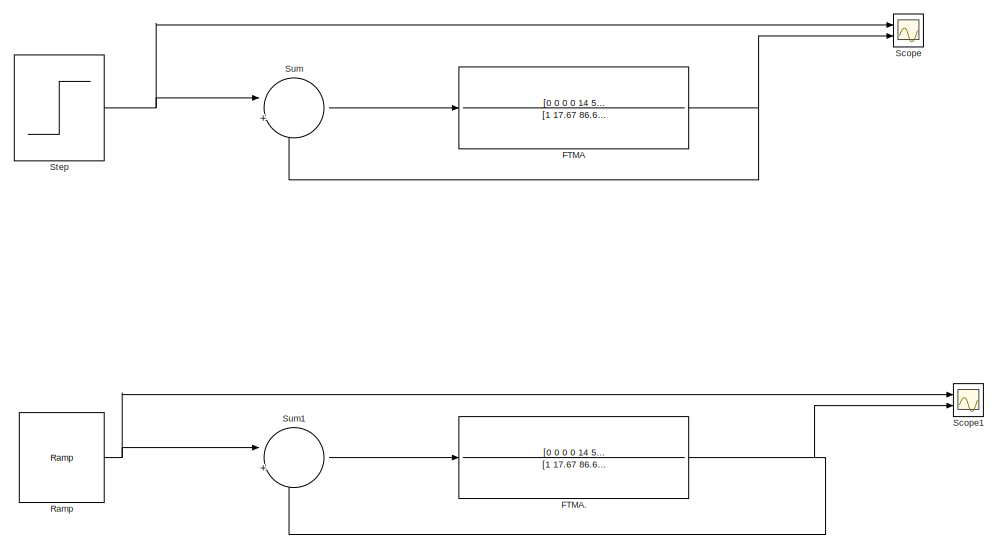
[diagram: root canvas - part 1/3, left side, full height]
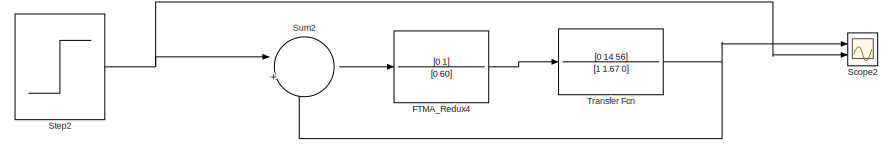
[diagram: root canvas - part 2/3, top right region]
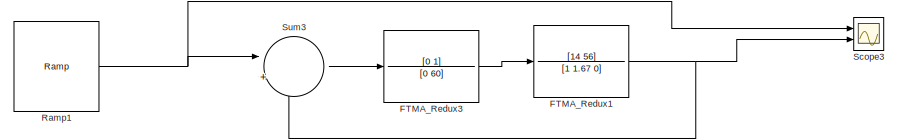
[diagram: root canvas - part 3/3, bottom right region]
MODEL slx_3f107bc41e37
KIND model
CONFIG AbsTol = auto
CONFIG EnableMultiTasking = off
CONFIG FixedStep = auto
CONFIG MaxStep = auto
CONFIG MinStep = auto
CONFIG RelTol = 1e-3
CONFIG SampleTimeConstraint = Unconstrained
CONFIG Solver = VariableStepAuto
CONFIG SolverName = VariableStepAuto
CONFIG StartTime = 0.0
CONFIG StopTime = 10
BLOCK [TransferFcn] FTMA
  Denominator = [1 17.67 86.67 100 0]
  Numerator = [0 0 0 0 14 56]
BLOCK [TransferFcn] FTMA.
  Denominator = [1 17.67 86.67 100 0]
  Numerator = [0 0 0 0 14 56]
BLOCK [TransferFcn] FTMA_Redux1
  Denominator = [1 1.67 0]
  Numerator = [14 56]
  Tag = FTMA_Redux
BLOCK [TransferFcn] FTMA_Redux3
  Denominator = [0 60]
  Numerator = [0 1]
  Tag = FTMA_Redux
BLOCK [TransferFcn] FTMA_Redux4
  Denominator = [0 60]
  Numerator = [0 1]
  Tag = FTMA_Redux
BLOCK [Reference] Ramp  REF=simulink/Sources/Ramp
  Ports = [0, 1]
  SourceBlock = simulink/Sources/Ramp
  SourceProductBaseCode = SL
  SourceType = Ramp
BLOCK [Reference] Ramp1  REF=simulink/Sources/Ramp
  Ports = [0, 1]
  SourceBlock = simulink/Sources/Ramp
  SourceProductBaseCode = SL
  SourceType = Ramp
BLOCK [Scope] Scope
  Floating = off
  NumInputPorts = 2
  Ports = [2]
  ScopeSpecificationString = Simulink.scopes.TimeScopeBlockCfg('CurrentConfiguration', extmgr.ConfigurationSet(extmgr.Configuration('Core','General UI',true,'FigureColor',[0 0 0]),extmgr.Configuration('Core','Source UI',true),extmgr.Configuration('Sources','WiredSimulink',true),extmgr.Configuration('Visuals','Time Domain',true,'SerializedDisplays',{struct('MinYLimReal','-0.12564','MaxYLimReal','1.13072','YLabelReal','','MinYL...<+1884ch>
BLOCK [Scope] Scope1
  Floating = off
  NumInputPorts = 2
  Ports = [2]
  ScopeSpecificationString = Simulink.scopes.TimeScopeBlockCfg('CurrentConfiguration', extmgr.ConfigurationSet(extmgr.Configuration('Core','General UI',true,'FigureColor',[0 0 0]),extmgr.Configuration('Core','Source UI',true),extmgr.Configuration('Sources','WiredSimulink',true,'DataLoggingVariableName','ScopeData1'),extmgr.Configuration('Visuals','Time Domain',true,'SerializedDisplays',{struct('MinYLimReal','-1.25','MaxYLimRe...<+1915ch>
BLOCK [Scope] Scope2
  Floating = off
  NumInputPorts = 2
  Ports = [2]
  ScopeSpecificationString = Simulink.scopes.TimeScopeBlockCfg('CurrentConfiguration', extmgr.ConfigurationSet(extmgr.Configuration('Core','General UI',true),extmgr.Configuration('Core','Source UI',true),extmgr.Configuration('Sources','WiredSimulink',true,'DataLoggingVariableName','ScopeData1'),extmgr.Configuration('Visuals','Time Domain',true,'SerializedDisplays',{struct('MinYLimReal','-0.125','MaxYLimReal','1.125','YLabelRe...<+1367ch>
BLOCK [Scope] Scope3
  Floating = off
  NumInputPorts = 2
  Ports = [2]
  ScopeSpecificationString = Simulink.scopes.TimeScopeBlockCfg('CurrentConfiguration', extmgr.ConfigurationSet(extmgr.Configuration('Core','General UI',true),extmgr.Configuration('Core','Source UI',true),extmgr.Configuration('Sources','WiredSimulink',true,'DataLoggingVariableName','ScopeData2'),extmgr.Configuration('Visuals','Time Domain',true,'SerializedDisplays',{struct('MinYLimReal','-1.25','MaxYLimReal','11.25','YLabelRea...<+1872ch>
BLOCK [Step] Step
  SampleTime = 0
  Time = 0
BLOCK [Step] Step2
  SampleTime = 0
  Time = 0
BLOCK [Sum] Sum
  Inputs = |+-
  Ports = [2, 1]
BLOCK [Sum] Sum1
  Inputs = |+-
  Ports = [2, 1]
BLOCK [Sum] Sum2
  Inputs = |+-
  Ports = [2, 1]
BLOCK [Sum] Sum3
  Inputs = |+-
  Ports = [2, 1]
BLOCK [TransferFcn] Transfer Fcn
  Denominator = [1 1.67 0]
  Numerator = [0 14 56]
NET FTMA.:1 -> Scope1:2, Sum1:2
NET FTMA:1 -> Scope:2, Sum:2
NET FTMA_Redux1:1 -> Scope3:2, Sum3:2
LINE FTMA_Redux3:1 -> FTMA_Redux1:1
LINE FTMA_Redux4:1 -> Transfer Fcn:1
NET Ramp1:1 -> Scope3:1, Sum3:1
NET Ramp:1 -> Scope1:1, Sum1:1
NET Step2:1 -> Scope2:2, Sum2:1
NET Step:1 -> Scope:1, Sum:1
LINE Sum1:1 -> FTMA.:1
LINE Sum2:1 -> FTMA_Redux4:1
LINE Sum3:1 -> FTMA_Redux3:1
LINE Sum:1 -> FTMA:1
NET Transfer Fcn:1 -> Scope2:1, Sum2:2
note: NET lines group one-source signal fan-out (src -> all destinations, sorted); 1:1 wires keep LINE
